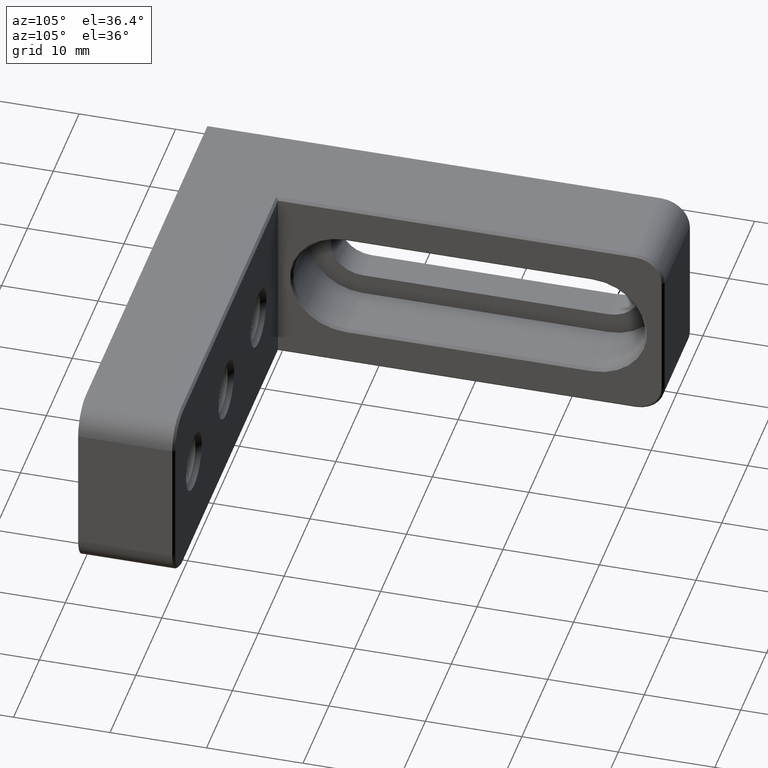
[diagram: clean part render]
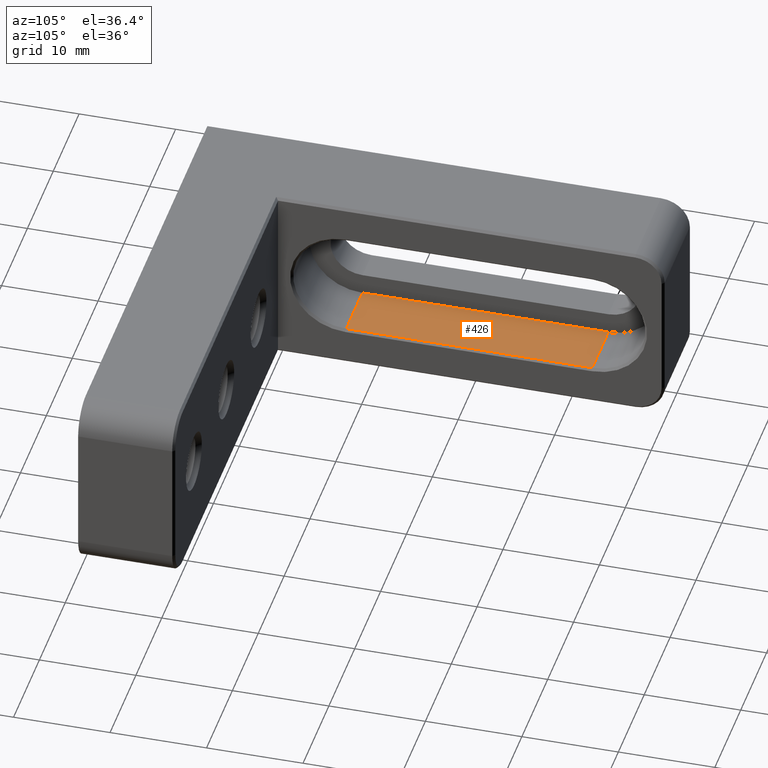
[diagram: same view with one face highlighted and labeled with its STEP entity id]
A machine part, auxiliary view. The second image highlights one B-rep face of the part: STEP entity #426.
In plain terms, the highlighted planar face has unit normal (-0, 0, -1).
Its self-contained STEP definition (entity closure, byte-faithful):
#91 = LINE ( 'NONE', #360, #774 ) ;
#98 = CARTESIAN_POINT ( 'NONE',  ( -21.49999999999999645, 17.00000000000000355, -5.500000000000000000 ) ) ;
#104 = AXIS2_PLACEMENT_3D ( 'NONE', #390, #200, #577 ) ;
#129 = LINE ( 'NONE', #488, #704 ) ;
#144 = LINE ( 'NONE', #515, #740 ) ;
#181 = EDGE_CURVE ( 'NONE', #278, #744, #977, .T. ) ;
#195 = EDGE_CURVE ( 'NONE', #943, #278, #144, .T. ) ;
#200 = DIRECTION ( 'NONE',  ( -9.130123557772667102E-17, 1.360567432138672328E-16, -1.000000000000000000 ) ) ;
#278 = VERTEX_POINT ( 'NONE', #1152 ) ;
#280 = PLANE ( 'NONE',  #104 ) ;
#295 = ORIENTED_EDGE ( 'NONE', *, *, #1007, .F. ) ;
#309 = DIRECTION ( 'NONE',  ( 1.242214876410755791E-32, 1.000000000000000000, 1.360567432138672328E-16 ) ) ;
#360 = CARTESIAN_POINT ( 'NONE',  ( -21.49999999999999645, 42.50000000000000000, -5.499999999999996447 ) ) ;
#361 = CARTESIAN_POINT ( 'NONE',  ( -21.49999999999999645, 42.50000000000000000, -5.499999999999996447 ) ) ;
#377 = VECTOR ( 'NONE', #309, 1000.000000000000000 ) ;
#390 = CARTESIAN_POINT ( 'NONE',  ( -21.49999999999999645, 42.50000000000000000, -5.499999999999996447 ) ) ;
#426 = ADVANCED_FACE ( 'NONE', ( #462 ), #280, .F. ) ;
#462 = FACE_OUTER_BOUND ( 'NONE', #642, .T. ) ;
#467 = VERTEX_POINT ( 'NONE', #361 ) ;
#488 = CARTESIAN_POINT ( 'NONE',  ( -21.49999999999999645, 42.50000000000000000, -5.499999999999996447 ) ) ;
#493 = CARTESIAN_POINT ( 'NONE',  ( -15.24999999999998757, 42.50000000000000000, -5.499999999999997335 ) ) ;
#515 = CARTESIAN_POINT ( 'NONE',  ( -21.49999999999999645, 17.00000000000000355, -5.500000000000000000 ) ) ;
#577 = DIRECTION ( 'NONE',  ( 0.000000000000000000, 1.000000000000000000, 1.360567432138672328E-16 ) ) ;
#642 = EDGE_LOOP ( 'NONE', ( #1114, #1177, #931, #295 ) ) ;
#704 = VECTOR ( 'NONE', #1082, 1000.000000000000000 ) ;
#740 = VECTOR ( 'NONE', #897, 1000.000000000000000 ) ;
#744 = VERTEX_POINT ( 'NONE', #1115 ) ;
#745 = DIRECTION ( 'NONE',  ( -0.000000000000000000, 1.000000000000000000, 1.360567432138672328E-16 ) ) ;
#774 = VECTOR ( 'NONE', #745, 1000.000000000000000 ) ;
#897 = DIRECTION ( 'NONE',  ( 1.000000000000000000, -0.000000000000000000, -9.130123557772668334E-17 ) ) ;
#931 = ORIENTED_EDGE ( 'NONE', *, *, #1091, .F. ) ;
#943 = VERTEX_POINT ( 'NONE', #98 ) ;
#977 = LINE ( 'NONE', #493, #377 ) ;
#1007 = EDGE_CURVE ( 'NONE', #943, #467, #91, .T. ) ;
#1082 = DIRECTION ( 'NONE',  ( 1.000000000000000000, -0.000000000000000000, -9.130123557772668334E-17 ) ) ;
#1091 = EDGE_CURVE ( 'NONE', #467, #744, #129, .T. ) ;
#1114 = ORIENTED_EDGE ( 'NONE', *, *, #195, .T. ) ;
#1115 = CARTESIAN_POINT ( 'NONE',  ( -15.24999999999998934, 42.50000000000000000, -5.499999999999997335 ) ) ;
#1152 = CARTESIAN_POINT ( 'NONE',  ( -15.24999999999998934, 17.00000000000000355, -5.500000000000000888 ) ) ;
#1177 = ORIENTED_EDGE ( 'NONE', *, *, #181, .T. ) ;